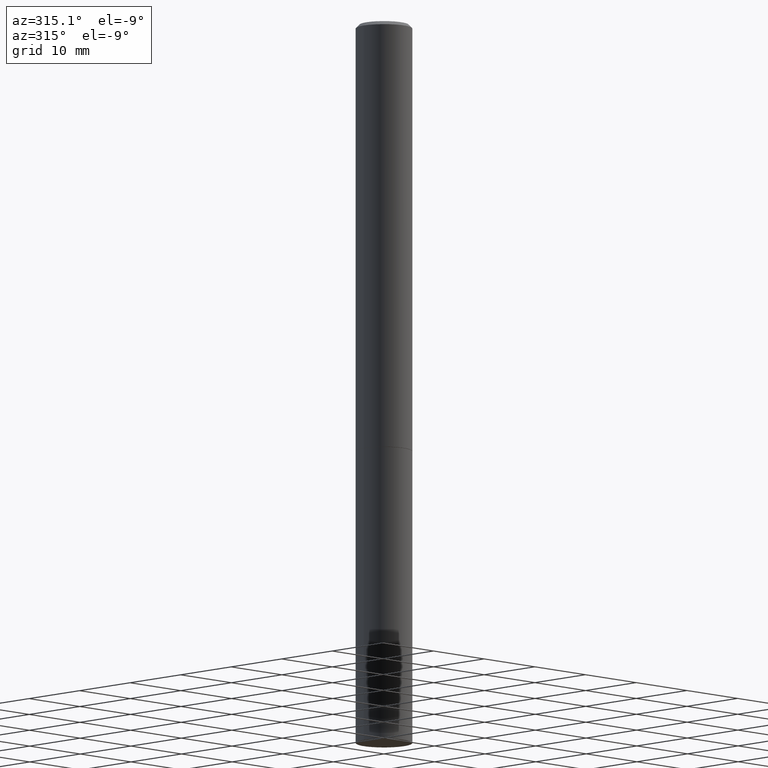
[diagram: clean part render]
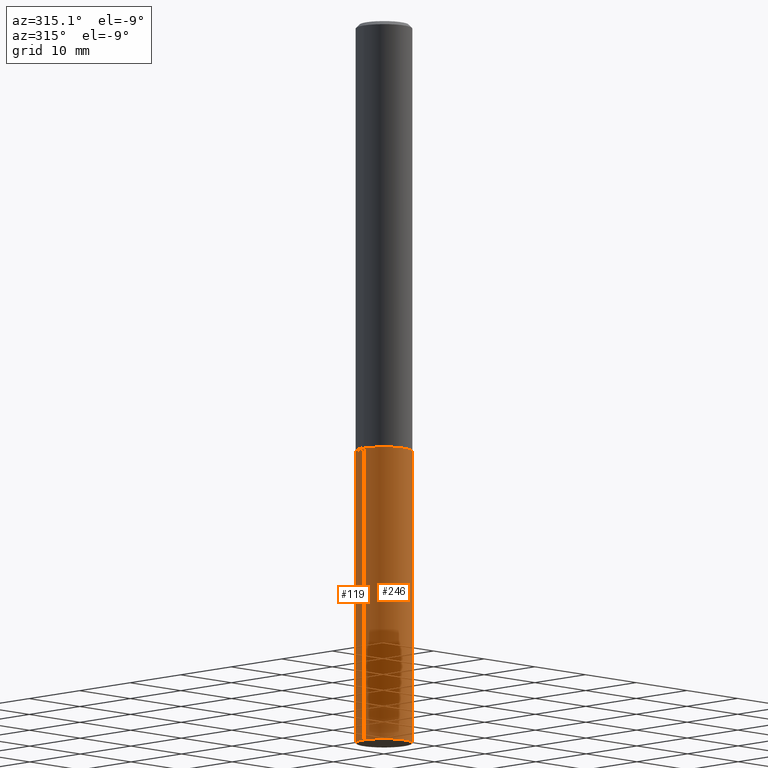
[diagram: same view with one multi-face feature highlighted, each face labeled with its STEP entity id]
A machine part, auxiliary view. The highlighted faces form ONE feature: a constant-radius fillet chain: 2 tangent blend faces with common blend radius 3.9688 mm. The faces share edges in the B-rep.
Their STEP definitions:
[1] entity #119 (Cylinder):
#34 = DIRECTION ( 'NONE',  ( 1.000000000000000000, -6.982962677686262766E-15, 0.000000000000000000 ) ) ;
#38 = ORIENTED_EDGE ( 'NONE', *, *, #214, .F. ) ;
#53 = EDGE_CURVE ( 'NONE', #360, #208, #201, .T. ) ;
#55 = VERTEX_POINT ( 'NONE', #124 ) ;
#106 = DIRECTION ( 'NONE',  ( 1.000000000000000000, -6.982962677686266711E-15, 4.876176775795936353E-29 ) ) ;
#112 = CYLINDRICAL_SURFACE ( 'NONE', #166, 0.1562500000000000000 ) ;
#114 = CARTESIAN_POINT ( 'NONE',  ( 9.781875224740546387E-29, -1.396592535537258233E-14, -4.000000000000000000 ) ) ;
#118 = AXIS2_PLACEMENT_3D ( 'NONE', #386, #198, #263 ) ;
#119 = ADVANCED_FACE ( 'NONE', ( #199 ), #112, .T. ) ;
#124 = CARTESIAN_POINT ( 'NONE',  ( -0.1562500000000000000, -1.001887374293736968E-14, -2.375000000000000000 ) ) ;
#141 = VERTEX_POINT ( 'NONE', #165 ) ;
#165 = CARTESIAN_POINT ( 'NONE',  ( 0.1562500000000000000, -9.383356098140948502E-15, -2.375000000000000000 ) ) ;
#166 = AXIS2_PLACEMENT_3D ( 'NONE', #382, #168, #106 ) ;
#168 = DIRECTION ( 'NONE',  ( -2.445468806185136597E-29, 3.491481338843145583E-15, 1.000000000000000000 ) ) ;
#169 = EDGE_CURVE ( 'NONE', #208, #55, #357, .T. ) ;
#192 = CARTESIAN_POINT ( 'NONE',  ( 0.1562499999999997224, -1.503787816752438098E-14, -4.000000000000000000 ) ) ;
#198 = DIRECTION ( 'NONE',  ( -2.445468806185136597E-29, 3.491481338843145583E-15, 1.000000000000000000 ) ) ;
#199 = FACE_OUTER_BOUND ( 'NONE', #283, .T. ) ;
#201 = CIRCLE ( 'NONE', #205, 0.1562500000000000000 ) ;
#205 = AXIS2_PLACEMENT_3D ( 'NONE', #114, #307, #34 ) ;
#208 = VERTEX_POINT ( 'NONE', #383 ) ;
#209 = ORIENTED_EDGE ( 'NONE', *, *, #169, .T. ) ;
#214 = EDGE_CURVE ( 'NONE', #141, #55, #359, .T. ) ;
#217 = DIRECTION ( 'NONE',  ( -2.445468806185136877E-29, 3.491481338843145188E-15, 1.000000000000000000 ) ) ;
#260 = EDGE_CURVE ( 'NONE', #360, #141, #309, .T. ) ;
#263 = DIRECTION ( 'NONE',  ( 1.000000000000000000, -6.982962677686262766E-15, 0.000000000000000000 ) ) ;
#271 = DIRECTION ( 'NONE',  ( -2.445468806185136877E-29, 3.491481338843145188E-15, 1.000000000000000000 ) ) ;
#281 = VECTOR ( 'NONE', #217, 39.37007874015748143 ) ;
#283 = EDGE_LOOP ( 'NONE', ( #297, #209, #38, #329 ) ) ;
#293 = CARTESIAN_POINT ( 'NONE',  ( -0.1562500000000000000, 1.110223024625156540E-15, -7.685836078523291160E-30 ) ) ;
#297 = ORIENTED_EDGE ( 'NONE', *, *, #53, .T. ) ;
#307 = DIRECTION ( 'NONE',  ( -2.445468806185136597E-29, 3.491481338843145583E-15, 1.000000000000000000 ) ) ;
#309 = LINE ( 'NONE', #362, #281 ) ;
#310 = VECTOR ( 'NONE', #271, 39.37007874015748143 ) ;
#329 = ORIENTED_EDGE ( 'NONE', *, *, #260, .F. ) ;
#357 = LINE ( 'NONE', #293, #310 ) ;
#359 = CIRCLE ( 'NONE', #118, 0.1562500000000000000 ) ;
#360 = VERTEX_POINT ( 'NONE', #192 ) ;
#362 = CARTESIAN_POINT ( 'NONE',  ( 0.1562500000000000000, -1.091087918388479174E-15, 7.619026212181150377E-30 ) ) ;
#382 = CARTESIAN_POINT ( 'NONE',  ( 0.000000000000000000, 0.000000000000000000, 0.000000000000000000 ) ) ;
#383 = CARTESIAN_POINT ( 'NONE',  ( -0.1562499999999997224, -1.287483743698410395E-14, -4.000000000000000000 ) ) ;
#386 = CARTESIAN_POINT ( 'NONE',  ( 5.807988414689699417E-29, -8.292268179752470118E-15, -2.375000000000000000 ) ) ;
[2] entity #246 (Cylinder):
#13 = CYLINDRICAL_SURFACE ( 'NONE', #211, 0.1562500000000000000 ) ;
#55 = VERTEX_POINT ( 'NONE', #124 ) ;
#77 = AXIS2_PLACEMENT_3D ( 'NONE', #390, #247, #339 ) ;
#78 = FACE_OUTER_BOUND ( 'NONE', #273, .T. ) ;
#89 = DIRECTION ( 'NONE',  ( 1.000000000000000000, -6.982962677686266711E-15, 4.876176775795936353E-29 ) ) ;
#123 = DIRECTION ( 'NONE',  ( 1.000000000000000000, -6.982962677686262766E-15, 0.000000000000000000 ) ) ;
#124 = CARTESIAN_POINT ( 'NONE',  ( -0.1562500000000000000, -1.001887374293736968E-14, -2.375000000000000000 ) ) ;
#141 = VERTEX_POINT ( 'NONE', #165 ) ;
#147 = ORIENTED_EDGE ( 'NONE', *, *, #169, .F. ) ;
#152 = DIRECTION ( 'NONE',  ( -2.445468806185136597E-29, 3.491481338843145583E-15, 1.000000000000000000 ) ) ;
#165 = CARTESIAN_POINT ( 'NONE',  ( 0.1562500000000000000, -9.383356098140948502E-15, -2.375000000000000000 ) ) ;
#169 = EDGE_CURVE ( 'NONE', #208, #55, #357, .T. ) ;
#178 = CIRCLE ( 'NONE', #356, 0.1562500000000000000 ) ;
#182 = ORIENTED_EDGE ( 'NONE', *, *, #385, .T. ) ;
#192 = CARTESIAN_POINT ( 'NONE',  ( 0.1562499999999997224, -1.503787816752438098E-14, -4.000000000000000000 ) ) ;
#208 = VERTEX_POINT ( 'NONE', #383 ) ;
#211 = AXIS2_PLACEMENT_3D ( 'NONE', #259, #152, #89 ) ;
#216 = ORIENTED_EDGE ( 'NONE', *, *, #260, .T. ) ;
#217 = DIRECTION ( 'NONE',  ( -2.445468806185136877E-29, 3.491481338843145188E-15, 1.000000000000000000 ) ) ;
#235 = ORIENTED_EDGE ( 'NONE', *, *, #301, .F. ) ;
#246 = ADVANCED_FACE ( 'NONE', ( #78 ), #13, .T. ) ;
#247 = DIRECTION ( 'NONE',  ( -2.445468806185136597E-29, 3.491481338843145583E-15, 1.000000000000000000 ) ) ;
#259 = CARTESIAN_POINT ( 'NONE',  ( 0.000000000000000000, 0.000000000000000000, 0.000000000000000000 ) ) ;
#260 = EDGE_CURVE ( 'NONE', #360, #141, #309, .T. ) ;
#271 = DIRECTION ( 'NONE',  ( -2.445468806185136877E-29, 3.491481338843145188E-15, 1.000000000000000000 ) ) ;
#273 = EDGE_LOOP ( 'NONE', ( #147, #182, #216, #235 ) ) ;
#278 = DIRECTION ( 'NONE',  ( -2.445468806185136597E-29, 3.491481338843145583E-15, 1.000000000000000000 ) ) ;
#281 = VECTOR ( 'NONE', #217, 39.37007874015748143 ) ;
#293 = CARTESIAN_POINT ( 'NONE',  ( -0.1562500000000000000, 1.110223024625156540E-15, -7.685836078523291160E-30 ) ) ;
#301 = EDGE_CURVE ( 'NONE', #55, #141, #349, .T. ) ;
#309 = LINE ( 'NONE', #362, #281 ) ;
#310 = VECTOR ( 'NONE', #271, 39.37007874015748143 ) ;
#339 = DIRECTION ( 'NONE',  ( 1.000000000000000000, -6.982962677686262766E-15, 0.000000000000000000 ) ) ;
#349 = CIRCLE ( 'NONE', #77, 0.1562500000000000000 ) ;
#356 = AXIS2_PLACEMENT_3D ( 'NONE', #364, #278, #123 ) ;
#357 = LINE ( 'NONE', #293, #310 ) ;
#360 = VERTEX_POINT ( 'NONE', #192 ) ;
#362 = CARTESIAN_POINT ( 'NONE',  ( 0.1562500000000000000, -1.091087918388479174E-15, 7.619026212181150377E-30 ) ) ;
#364 = CARTESIAN_POINT ( 'NONE',  ( 9.781875224740546387E-29, -1.396592535537258233E-14, -4.000000000000000000 ) ) ;
#383 = CARTESIAN_POINT ( 'NONE',  ( -0.1562499999999997224, -1.287483743698410395E-14, -4.000000000000000000 ) ) ;
#385 = EDGE_CURVE ( 'NONE', #208, #360, #178, .T. ) ;
#390 = CARTESIAN_POINT ( 'NONE',  ( 5.807988414689699417E-29, -8.292268179752470118E-15, -2.375000000000000000 ) ) ;